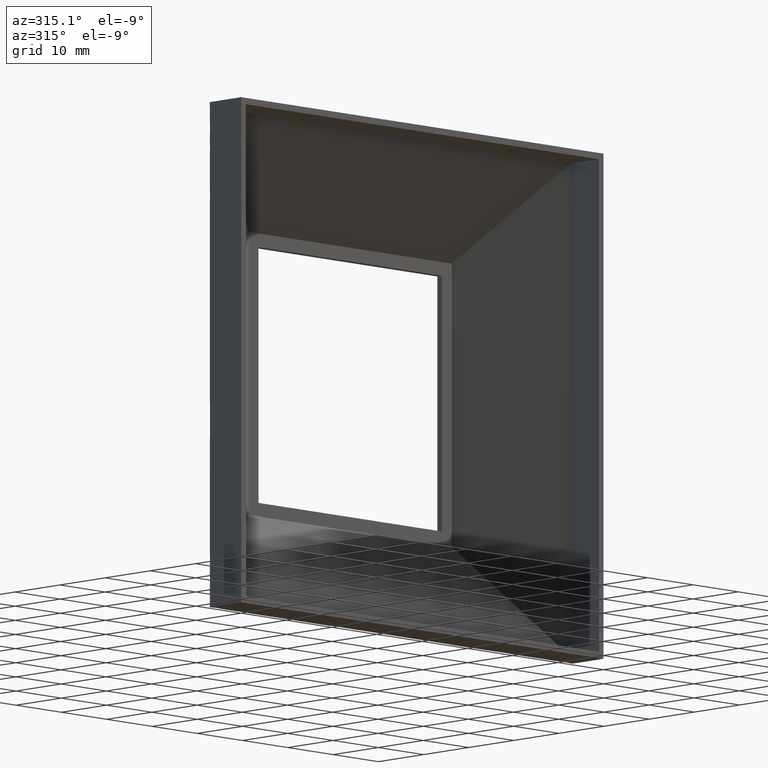
[diagram: clean part render]
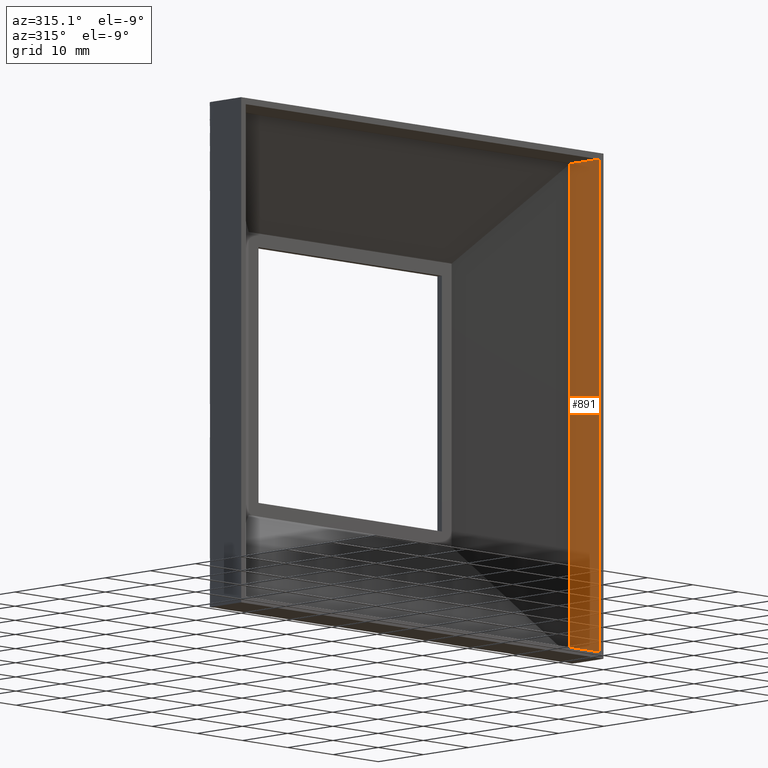
[diagram: same view with one face highlighted and labeled with its STEP entity id]
A machine part, auxiliary view. The second image highlights one B-rep face of the part: STEP entity #891.
In plain terms, the highlighted planar face has unit normal (-1, 0, 0).
Its self-contained STEP definition (entity closure, byte-faithful):
#11 = VECTOR ( 'NONE', #936, 1000.000000000000000 ) ;
#37 = LINE ( 'NONE', #339, #11 ) ;
#42 = LINE ( 'NONE', #51, #806 ) ;
#51 = CARTESIAN_POINT ( 'NONE',  ( 38.99999999999998600, 7.000000000000000000, -39.00000000000000700 ) ) ;
#80 = DIRECTION ( 'NONE',  ( 0.0000000000000000000, 0.0000000000000000000, -1.000000000000000000 ) ) ;
#139 = LINE ( 'NONE', #242, #1124 ) ;
#190 = VECTOR ( 'NONE', #80, 1000.000000000000000 ) ;
#210 = VERTEX_POINT ( 'NONE', #712 ) ;
#234 = PLANE ( 'NONE',  #260 ) ;
#237 = FACE_OUTER_BOUND ( 'NONE', #281, .T. ) ;
#242 = CARTESIAN_POINT ( 'NONE',  ( 38.99999999999998600, 6.422649730810371200, 39.99999999999999300 ) ) ;
#257 = VERTEX_POINT ( 'NONE', #675 ) ;
#260 = AXIS2_PLACEMENT_3D ( 'NONE', #322, #927, #674 ) ;
#281 = EDGE_LOOP ( 'NONE', ( #366, #561, #870, #654 ) ) ;
#321 = LINE ( 'NONE', #595, #190 ) ;
#322 = CARTESIAN_POINT ( 'NONE',  ( 38.99999999999998600, 7.000000000000000000, 39.99999999999999300 ) ) ;
#339 = CARTESIAN_POINT ( 'NONE',  ( 38.99999999999998600, 7.000000000000000000, 38.99999999999999300 ) ) ;
#366 = ORIENTED_EDGE ( 'NONE', *, *, #907, .F. ) ;
#463 = EDGE_CURVE ( 'NONE', #210, #743, #139, .T. ) ;
#504 = DIRECTION ( 'NONE',  ( -0.0000000000000000000, 0.0000000000000000000, -1.000000000000000000 ) ) ;
#561 = ORIENTED_EDGE ( 'NONE', *, *, #938, .F. ) ;
#595 = CARTESIAN_POINT ( 'NONE',  ( 38.99999999999998600, 0.0000000000000000000, 0.0000000000000000000 ) ) ;
#654 = ORIENTED_EDGE ( 'NONE', *, *, #998, .T. ) ;
#673 = CARTESIAN_POINT ( 'NONE',  ( 38.99999999999998600, 0.0000000000000000000, 38.99999999999999300 ) ) ;
#674 = DIRECTION ( 'NONE',  ( 0.0000000000000000000, 0.0000000000000000000, 1.000000000000000000 ) ) ;
#675 = CARTESIAN_POINT ( 'NONE',  ( 38.99999999999998600, 0.0000000000000000000, -39.00000000000000700 ) ) ;
#712 = CARTESIAN_POINT ( 'NONE',  ( 38.99999999999998600, 6.422649730810371200, 38.99999999999999300 ) ) ;
#743 = VERTEX_POINT ( 'NONE', #923 ) ;
#806 = VECTOR ( 'NONE', #1085, 1000.000000000000000 ) ;
#870 = ORIENTED_EDGE ( 'NONE', *, *, #463, .T. ) ;
#891 = ADVANCED_FACE ( 'NONE', ( #237 ), #234, .T. ) ;
#907 = EDGE_CURVE ( 'NONE', #1089, #257, #321, .T. ) ;
#923 = CARTESIAN_POINT ( 'NONE',  ( 38.99999999999998600, 6.422649730810371200, -39.00000000000000700 ) ) ;
#927 = DIRECTION ( 'NONE',  ( -1.000000000000000000, 0.0000000000000000000, 0.0000000000000000000 ) ) ;
#936 = DIRECTION ( 'NONE',  ( 0.0000000000000000000, -1.000000000000000000, 0.0000000000000000000 ) ) ;
#938 = EDGE_CURVE ( 'NONE', #210, #1089, #37, .T. ) ;
#998 = EDGE_CURVE ( 'NONE', #743, #257, #42, .T. ) ;
#1085 = DIRECTION ( 'NONE',  ( 0.0000000000000000000, -1.000000000000000000, 0.0000000000000000000 ) ) ;
#1089 = VERTEX_POINT ( 'NONE', #673 ) ;
#1124 = VECTOR ( 'NONE', #504, 1000.000000000000000 ) ;